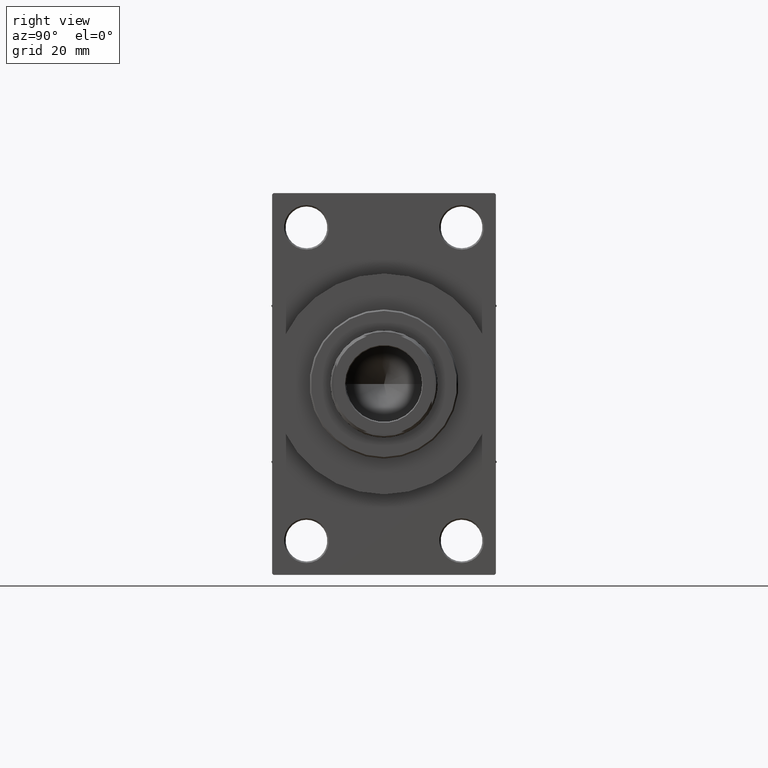
[diagram: clean part render]
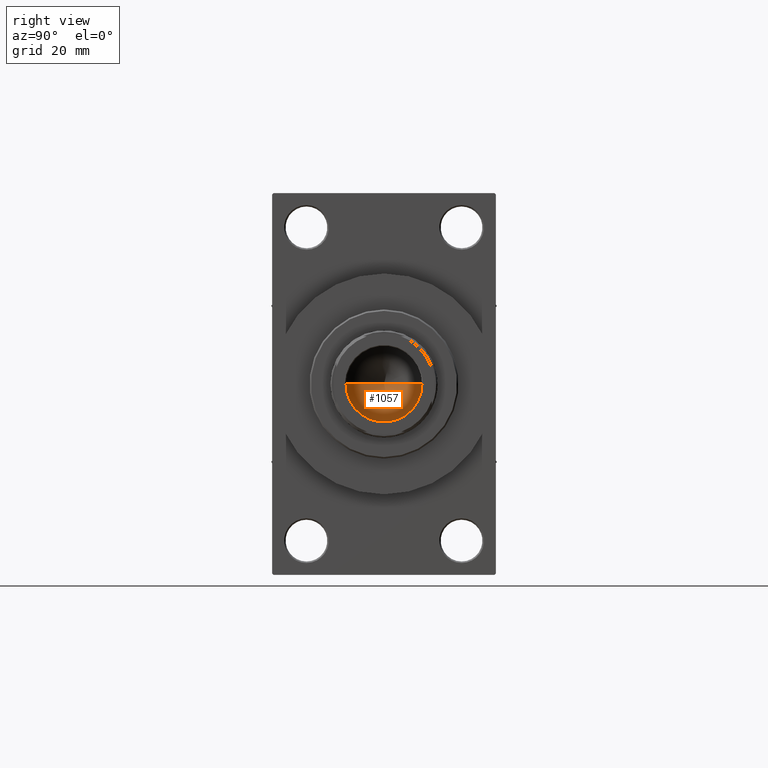
[diagram: same view with one face highlighted and labeled with its STEP entity id]
A machine part, right view. The second image highlights one B-rep face of the part: STEP entity #1057.
In plain terms, the highlighted conical surface has half-angle 59 deg.
Its self-contained STEP definition (entity closure, byte-faithful):
#192 = DIRECTION ( 'NONE',  ( -0.8571673007021117785, 1.049727191138617956E-16, 0.5150380749100550437 ) ) ;
#1057 = ADVANCED_FACE ( 'NONE', ( #1482 ), #33447, .F. ) ;
#1482 = FACE_OUTER_BOUND ( 'NONE', #5403, .T. ) ;
#5403 = EDGE_LOOP ( 'NONE', ( #46678, #9163, #12141 ) ) ;
#7595 = CARTESIAN_POINT ( 'NONE',  ( -12.74999999999998934, 1.561424668912873928E-15, 97.00000000000001421 ) ) ;
#9163 = ORIENTED_EDGE ( 'NONE', *, *, #32508, .T. ) ;
#11301 = VERTEX_POINT ( 'NONE', #24052 ) ;
#12141 = ORIENTED_EDGE ( 'NONE', *, *, #33805, .T. ) ;
#14864 = VECTOR ( 'NONE', #23291, 1000.000000000000000 ) ;
#15153 = CARTESIAN_POINT ( 'NONE',  ( -1.410643066818227497E-14, 0.000000000000000000, 89.33902710739862130 ) ) ;
#15174 = AXIS2_PLACEMENT_3D ( 'NONE', #23190, #38465, #31310 ) ;
#16574 = DIRECTION ( 'NONE',  ( 1.000000000000000000, 0.000000000000000000, 0.000000000000000000 ) ) ;
#19727 = LINE ( 'NONE', #26870, #14864 ) ;
#23190 = CARTESIAN_POINT ( 'NONE',  ( 0.000000000000000000, 0.000000000000000000, 97.00000000000001421 ) ) ;
#23291 = DIRECTION ( 'NONE',  ( 0.8571673007021117785, 0.000000000000000000, 0.5150380749100550437 ) ) ;
#24052 = CARTESIAN_POINT ( 'NONE',  ( 12.74999999999998934, 0.000000000000000000, 97.00000000000001421 ) ) ;
#24198 = CARTESIAN_POINT ( 'NONE',  ( 0.000000000000000000, 0.000000000000000000, 97.00000000000001421 ) ) ;
#26870 = CARTESIAN_POINT ( 'NONE',  ( 12.74999999999998934, 0.000000000000000000, 97.00000000000001421 ) ) ;
#30109 = CIRCLE ( 'NONE', #45345, 12.74999999999998934 ) ;
#30877 = DIRECTION ( 'NONE',  ( -0.000000000000000000, -0.000000000000000000, 1.000000000000000000 ) ) ;
#31310 = DIRECTION ( 'NONE',  ( 1.000000000000000000, 0.000000000000000000, 0.000000000000000000 ) ) ;
#32508 = EDGE_CURVE ( 'NONE', #41827, #11301, #19727, .T. ) ;
#33447 = CONICAL_SURFACE ( 'NONE', #15174, 12.74999999999998934, 1.029744258676653423 ) ;
#33805 = EDGE_CURVE ( 'NONE', #11301, #45580, #30109, .T. ) ;
#33919 = VECTOR ( 'NONE', #192, 1000.000000000000000 ) ;
#36696 = EDGE_CURVE ( 'NONE', #41827, #45580, #40274, .T. ) ;
#38465 = DIRECTION ( 'NONE',  ( -0.000000000000000000, -0.000000000000000000, 1.000000000000000000 ) ) ;
#40274 = LINE ( 'NONE', #7595, #33919 ) ;
#41827 = VERTEX_POINT ( 'NONE', #15153 ) ;
#43970 = CARTESIAN_POINT ( 'NONE',  ( -12.74999999999998934, 1.561424668912873928E-15, 97.00000000000001421 ) ) ;
#45345 = AXIS2_PLACEMENT_3D ( 'NONE', #24198, #30877, #16574 ) ;
#45580 = VERTEX_POINT ( 'NONE', #43970 ) ;
#46678 = ORIENTED_EDGE ( 'NONE', *, *, #36696, .F. ) ;